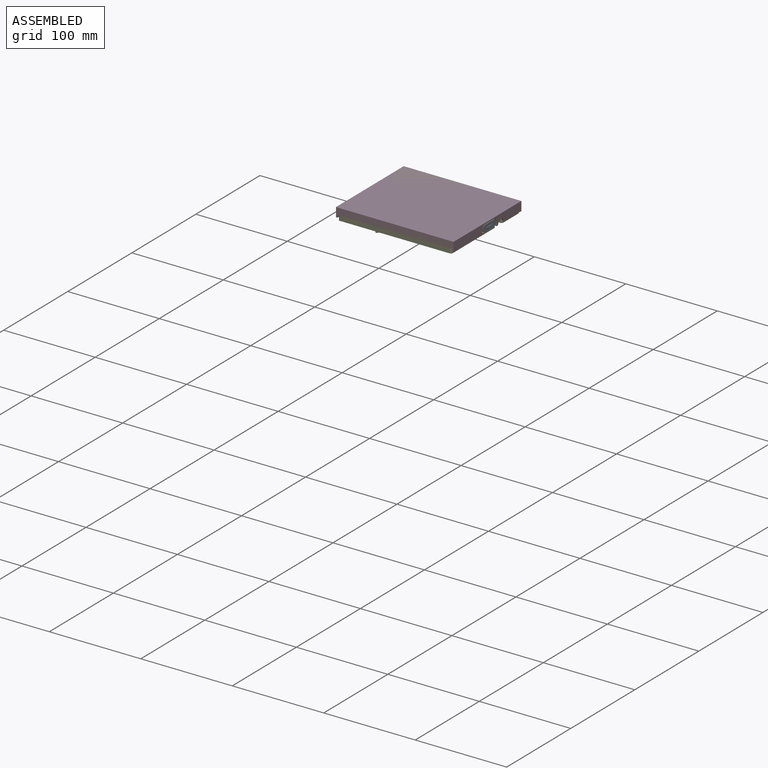
[diagram: assembled view]
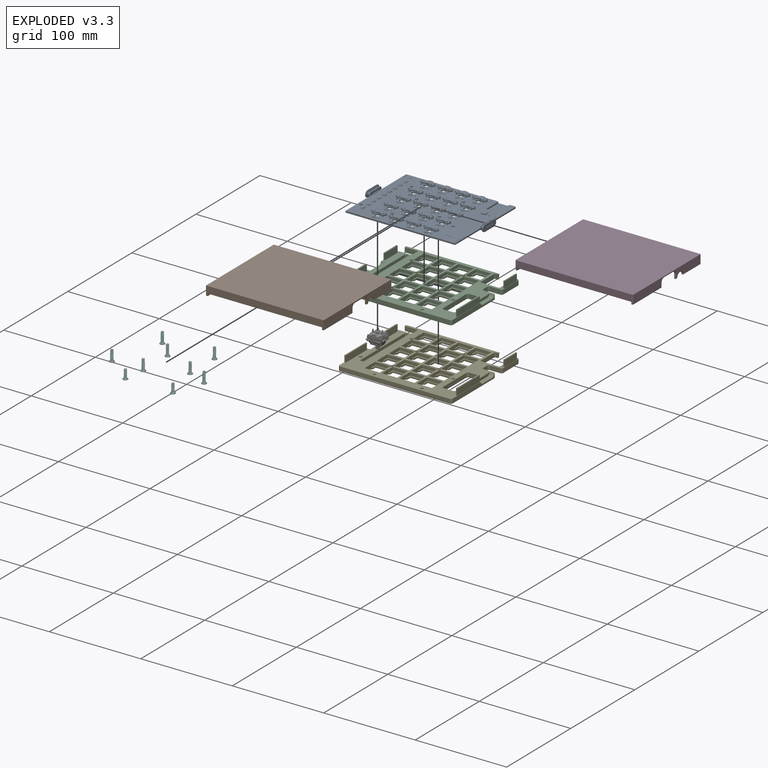
[diagram: exploded view]
GUIDED TOUR — FREECAD ASSEMBLY "slab-case-hackpad"

This assembly has 7 components, labeled P0..P6 below (a component is one placed body or linked part; the same part can appear more than once), held together by 0 modeled joints plus 21 derived contact edges. A joint is a constraint between two components; its type names the relative motion it leaves free:
  CONTACT — a derived adjacency edge — the two components touch in the source model (clearance under 2% of the assembly's diagonal); it is measured from the geometry, not a modeled constraint.
Axis/direction vectors are unit vectors and 'through' points are millimeter coordinates, both in the assembly's world frame.

MATES
  1. CONTACT "contact_0_1": P0 <-> P1, contact direction (0.000, -1.000, 0.000) through (-4.30, -36.93, 3.24) mm (derived from contact, not a modeled constraint)
  2. CONTACT "contact_0_2": P0 <-> P2, contact direction (0.000, 0.000, -1.000) through (77.65, -19.04, 0.00) mm (derived from contact, not a modeled constraint)
  3. CONTACT "contact_0_3": P0 <-> P3, contact direction (1.000, 0.000, 0.000) through (-3.50, -39.95, 5.81) mm (derived from contact, not a modeled constraint)
  4. CONTACT "contact_0_4": P0 <-> P4, contact direction (0.000, 0.000, -1.000) through (96.31, -66.95, 0.00) mm (derived from contact, not a modeled constraint)
  5. CONTACT "contact_0_5": P0 <-> P5, contact direction (0.000, -1.000, 0.000) through (2.25, -75.61, 1.58) mm (derived from contact, not a modeled constraint)
  6. CONTACT "contact_0_6": P0 <-> P6, contact direction (-0.654, -0.741, -0.153) through (24.14, -86.01, 1.59) mm (derived from contact, not a modeled constraint)
  7. CONTACT "contact_1_2": P1 <-> P2, contact direction (0.000, 0.000, -1.000) through (100.81, 0.50, 0.00) mm (derived from contact, not a modeled constraint)
  8. CONTACT "contact_1_3": P1 <-> P3, contact direction (0.000, 0.000, -1.000) through (124.30, -97.30, 0.00) mm (derived from contact, not a modeled constraint)
  9. CONTACT "contact_1_4": P1 <-> P4, contact direction (0.654, 0.741, 0.153) through (100.81, 2.40, 0.00) mm (derived from contact, not a modeled constraint)
  10. CONTACT "contact_1_5": P1 <-> P5, contact direction (0.000, -1.000, 0.000) through (74.16, -19.47, 1.60) mm (derived from contact, not a modeled constraint)
  11. CONTACT "contact_1_6": P1 <-> P6, contact direction (-0.654, -0.741, -0.153) through (34.01, -78.76, 0.79) mm (derived from contact, not a modeled constraint)
  12. CONTACT "contact_2_3": P2 <-> P3, contact direction (0.654, 0.741, 0.153) through (100.93, 0.50, 0.10) mm (derived from contact, not a modeled constraint)
  13. CONTACT "contact_2_4": P2 <-> P4, contact direction (0.654, 0.741, 0.153) through (19.98, -83.57, -5.00) mm (derived from contact, not a modeled constraint)
  14. CONTACT "contact_2_5": P2 <-> P5, contact direction (-0.654, -0.741, -0.153) through (39.63, -74.70, -3.99) mm (derived from contact, not a modeled constraint)
  15. CONTACT "contact_2_6": P2 <-> P6, contact direction (-0.654, -0.741, -0.153) through (36.20, -78.35, -5.01) mm (derived from contact, not a modeled constraint)
  16. CONTACT "contact_3_4": P3 <-> P4, contact direction (0.000, 0.000, -1.000) through (100.78, 2.33, 0.14) mm (derived from contact, not a modeled constraint)
  17. CONTACT "contact_3_5": P3 <-> P5, contact direction (-0.654, -0.741, -0.153) through (85.66, -98.15, 0.01) mm (derived from contact, not a modeled constraint)
  18. CONTACT "contact_3_6": P3 <-> P6, contact direction (-0.654, -0.741, -0.153) through (34.01, -78.76, 0.79) mm (derived from contact, not a modeled constraint)
  19. CONTACT "contact_4_5": P4 <-> P5, contact direction (-0.654, -0.741, -0.153) through (74.82, -17.28, -3.99) mm (derived from contact, not a modeled constraint)
  20. CONTACT "contact_4_6": P4 <-> P6, contact direction (-0.654, -0.741, -0.153) through (35.51, -77.73, -5.41) mm (derived from contact, not a modeled constraint)
  21. CONTACT "contact_5_6": P5 <-> P6, contact direction (-0.654, -0.741, -0.153) through (36.61, -78.37, -5.01) mm (derived from contact, not a modeled constraint)

ASSEMBLY ORDER
  1. P0 — the base component [order heuristic]
  2. P1 — core [order heuristic]
  3. P2 — core [order heuristic]
  4. P3 — core [order heuristic]
  5. P4 — core [order heuristic]
  6. P5 — core [order heuristic]
  7. P6 [order verified]
(P6 verified with a relaxed clearance tolerance: the source model stores slight part interference there.)
Order-tag legend:
  [order verified] — this step's position reverses a verified removal order: the component was checked to insert without passing through the ones already placed.
  [order heuristic] — the first 6 components form the assembly's core: parts whose collision-free extraction could not be verified, listed in mate-graph order.

Of the 7 components, 4 carry a construction recipe — the FreeCAD feature program (sketches with constraints, then the solid features that consume them) that regenerates the part from scratch, quoted from this document or from the linked companion document it references; the rest are supplied as boundary geometry only. The tour below walks the components in assembly order: each is shown spotlighted twice — in the assembled view, then in the exploded view, where a leader line traces a displaced component back to its assembled socket (components that stay in place when exploded have no leader line; saturated green if recipe-attached, orange if geometry-only; every other component desaturated gray) — followed by its recipe or geometry summary and the mates that hold it.
NOTE — document 2 of 2 of this assembly tour. The two overview renders and the header above are repeated from document 1; the component sections below continue where the previous document stopped.
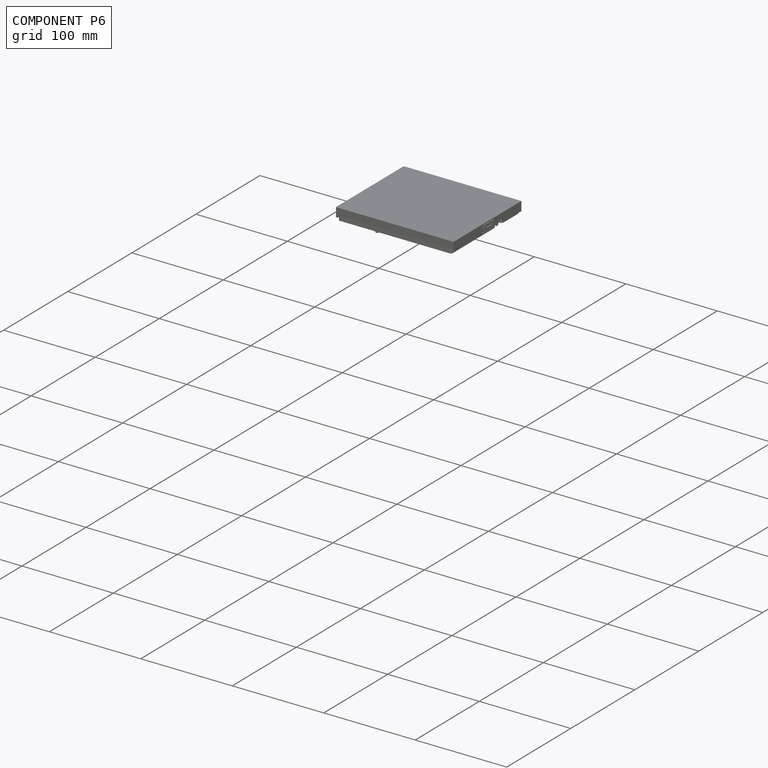
[diagram: component P6 — assembled]
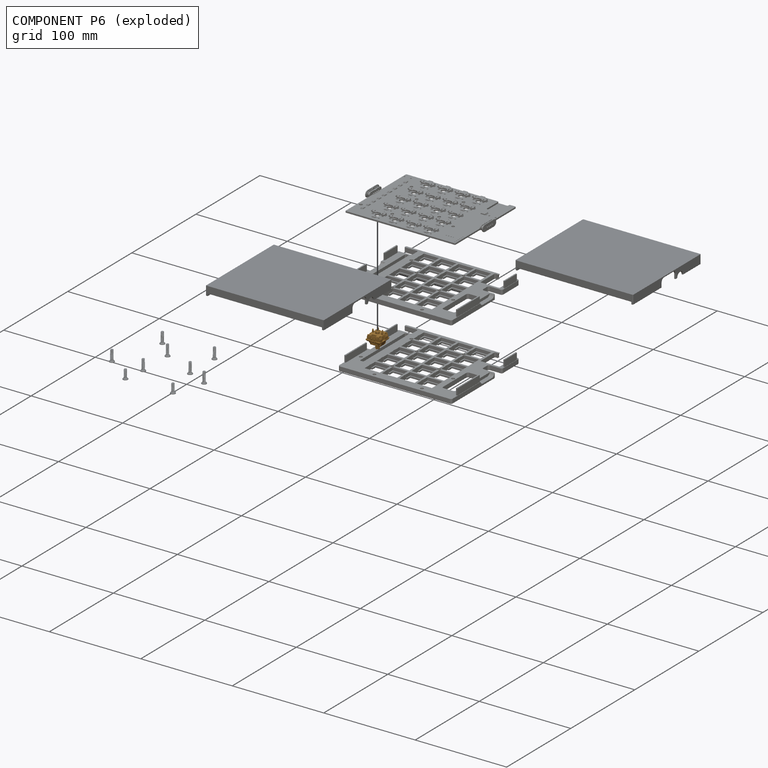
[diagram: component P6 — exploded]
COMPONENT P6 — geometry summary ("Single_MX"; no construction recipe available for this part):
  bounding box: 18.6 x 15.6 x 15.6 mm
  tessellated surface: 113,075 triangles
  volume: 1003 mm^3 (22% of its bounding box)
Held by: resting contact with P0 (derived edge); resting contact with P1 (derived edge); resting contact with P2 (derived edge); resting contact with P3 (derived edge); resting contact with P4 (derived edge); resting contact with P5 (derived edge).
PROVENANCE & LICENSES
Assembly and component geometry: a FreeCAD (.FCStd) document from a public repository crawl; components, placements and joints were extracted with FreeCAD and each solid tessellated.
Construction recipes: the document's own serialized feature recipes (and, for linked parts, the recipes of companion documents from the same project).
License: mit.
Joints: native FreeCAD joints and A2plus constraints are mapped to standard mate types; edges marked 'derived from contact' connect touching components and are measured from the geometry, not modeled.
Verification: 4 of this assembly's 7 components carry a construction recipe (4 from this document itself); the rest are geometry-only. Every component's tessellation passed the extraction mesh gates (mesh-volume checksum against the B-rep where available, bounding-box inflation <= 2%).
Renders: orthographic iso camera (az 35 / el 25); the floor grid conveys scale (grid pitch printed in each image; no ruler). In the exploded view each component is displaced by its stored offset vector: the offsets alone carry the explosion direction (mate normal/axis signs are not orientation cues and do not encode it), and separation distances are assigned per mate-chain, not proportionally to assembly-order depth.
